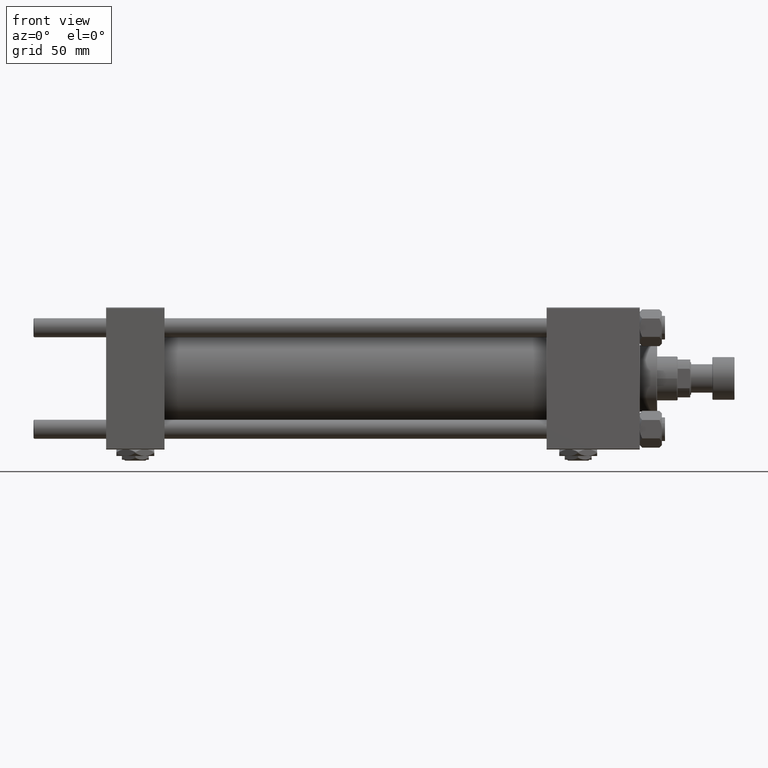
[diagram: clean part render]
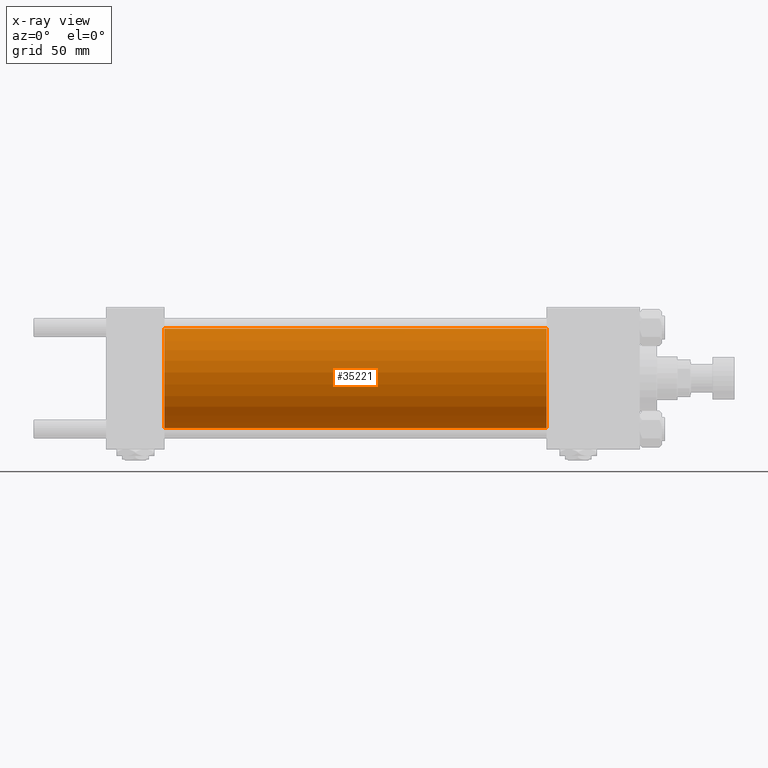
[diagram: x-ray — body ghosted, one internal face saturated and labeled with its STEP entity id]
A machine part, front view, then the same camera in x-ray: the body is ghosted and one INTERNAL B-rep face — a face not visible from any outside direction — is saturated and labeled: STEP entity #35221.
In plain terms, the highlighted cylindrical surface (partial cylindrical patch) has radius 31.5 mm, axis along (-1, -0, -0).
Its self-contained STEP definition (entity closure, byte-faithful):
#599 = CARTESIAN_POINT ( 'NONE',  ( 37.00000000000000000, 0.000000000000000000, 0.000000000000000000 ) ) ;
#3759 = CARTESIAN_POINT ( 'NONE',  ( 278.9999999999999432, 3.857637417314162689E-15, -31.50000000000000000 ) ) ;
#5039 = EDGE_CURVE ( 'NONE', #40599, #49773, #17290, .T. ) ;
#6222 = CARTESIAN_POINT ( 'NONE',  ( 278.9999999999999432, 0.000000000000000000, 31.50000000000000000 ) ) ;
#6721 = CIRCLE ( 'NONE', #26999, 31.50000000000000000 ) ;
#8839 = AXIS2_PLACEMENT_3D ( 'NONE', #599, #48982, #37597 ) ;
#9682 = DIRECTION ( 'NONE',  ( 1.000000000000000000, 0.000000000000000000, 0.000000000000000000 ) ) ;
#11681 = VECTOR ( 'NONE', #13103, 1000.000000000000000 ) ;
#13103 = DIRECTION ( 'NONE',  ( -1.000000000000000000, -0.000000000000000000, -0.000000000000000000 ) ) ;
#14003 = EDGE_CURVE ( 'NONE', #37351, #49773, #17071, .T. ) ;
#15492 = CARTESIAN_POINT ( 'NONE',  ( 278.9999999999999432, 0.000000000000000000, 31.50000000000000000 ) ) ;
#16052 = FACE_OUTER_BOUND ( 'NONE', #25742, .T. ) ;
#17071 = LINE ( 'NONE', #49329, #11681 ) ;
#17290 = CIRCLE ( 'NONE', #8839, 31.50000000000000000 ) ;
#17409 = ORIENTED_EDGE ( 'NONE', *, *, #21084, .T. ) ;
#18170 = ORIENTED_EDGE ( 'NONE', *, *, #50787, .F. ) ;
#19832 = ORIENTED_EDGE ( 'NONE', *, *, #5039, .F. ) ;
#19949 = LINE ( 'NONE', #15492, #37209 ) ;
#21084 = EDGE_CURVE ( 'NONE', #27630, #37351, #6721, .T. ) ;
#24147 = AXIS2_PLACEMENT_3D ( 'NONE', #27953, #44090, #39602 ) ;
#25020 = CARTESIAN_POINT ( 'NONE',  ( 278.9999999999999432, 0.000000000000000000, 0.000000000000000000 ) ) ;
#25742 = EDGE_LOOP ( 'NONE', ( #17409, #40142, #19832, #18170 ) ) ;
#26999 = AXIS2_PLACEMENT_3D ( 'NONE', #25020, #9682, #41163 ) ;
#27630 = VERTEX_POINT ( 'NONE', #6222 ) ;
#27953 = CARTESIAN_POINT ( 'NONE',  ( 278.9999999999999432, 0.000000000000000000, 0.000000000000000000 ) ) ;
#35221 = ADVANCED_FACE ( 'NONE', ( #16052 ), #43574, .F. ) ;
#37209 = VECTOR ( 'NONE', #44299, 1000.000000000000000 ) ;
#37351 = VERTEX_POINT ( 'NONE', #3759 ) ;
#37597 = DIRECTION ( 'NONE',  ( 0.000000000000000000, 0.000000000000000000, -1.000000000000000000 ) ) ;
#39602 = DIRECTION ( 'NONE',  ( 0.000000000000000000, 0.000000000000000000, 1.000000000000000000 ) ) ;
#40142 = ORIENTED_EDGE ( 'NONE', *, *, #14003, .T. ) ;
#40599 = VERTEX_POINT ( 'NONE', #46282 ) ;
#41163 = DIRECTION ( 'NONE',  ( 0.000000000000000000, 0.000000000000000000, -1.000000000000000000 ) ) ;
#43574 = CYLINDRICAL_SURFACE ( 'NONE', #24147, 31.50000000000000000 ) ;
#43765 = CARTESIAN_POINT ( 'NONE',  ( 37.00000000000000000, 3.857637417314162689E-15, -31.50000000000000000 ) ) ;
#44090 = DIRECTION ( 'NONE',  ( -1.000000000000000000, -0.000000000000000000, -0.000000000000000000 ) ) ;
#44299 = DIRECTION ( 'NONE',  ( -1.000000000000000000, -0.000000000000000000, -0.000000000000000000 ) ) ;
#46282 = CARTESIAN_POINT ( 'NONE',  ( 37.00000000000000000, 0.000000000000000000, 31.50000000000000000 ) ) ;
#48982 = DIRECTION ( 'NONE',  ( 1.000000000000000000, 0.000000000000000000, 0.000000000000000000 ) ) ;
#49329 = CARTESIAN_POINT ( 'NONE',  ( 278.9999999999999432, 3.857637417314162689E-15, -31.50000000000000000 ) ) ;
#49773 = VERTEX_POINT ( 'NONE', #43765 ) ;
#50787 = EDGE_CURVE ( 'NONE', #27630, #40599, #19949, .T. ) ;